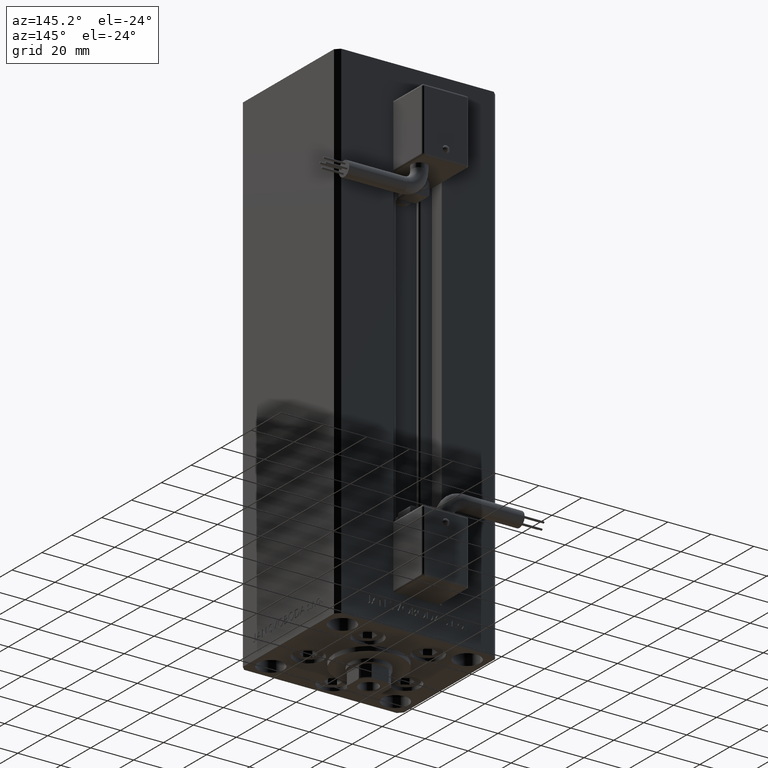
[diagram: clean part render]
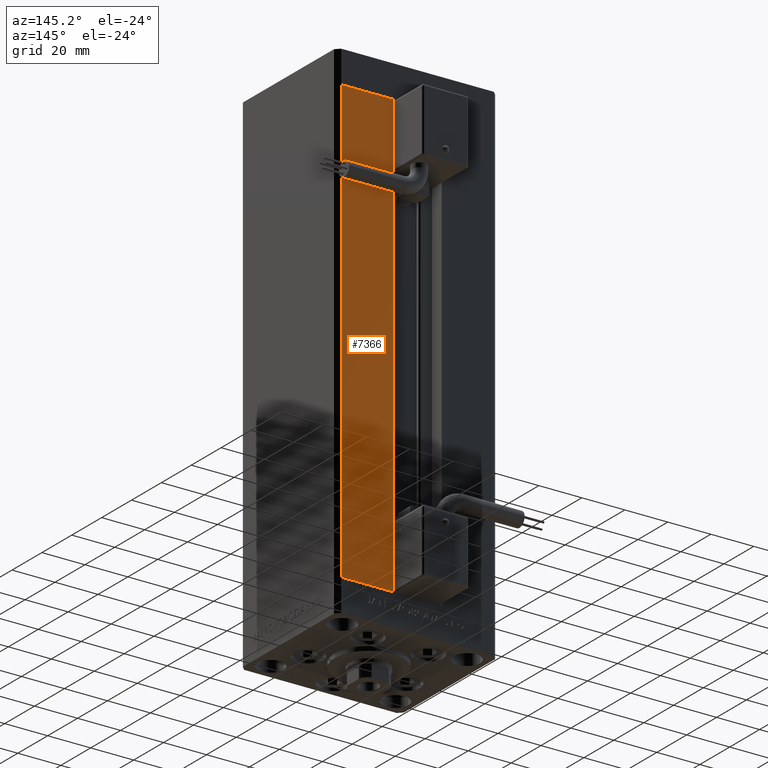
[diagram: same view with one face highlighted and labeled with its STEP entity id]
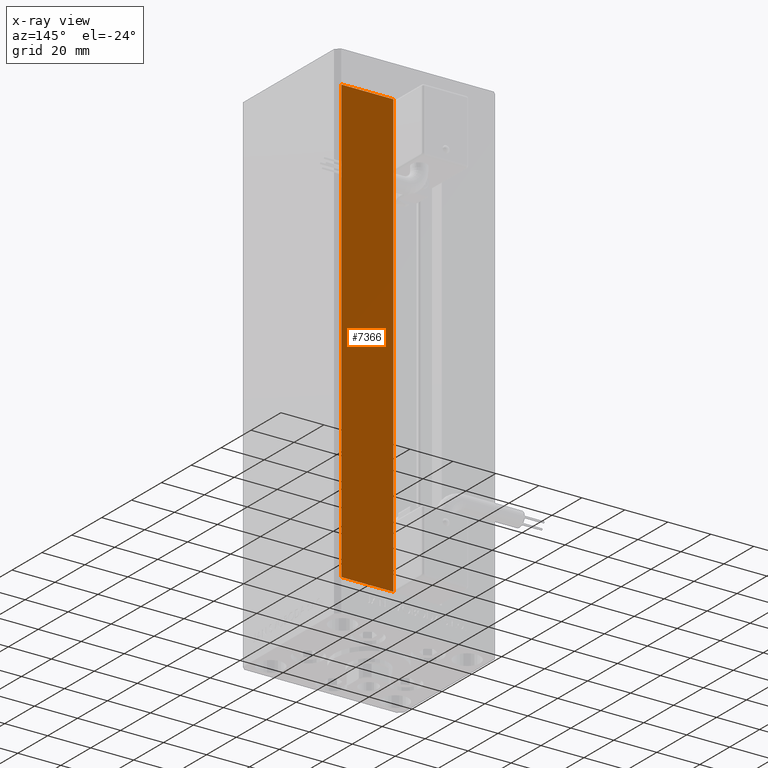
[diagram: x-ray of the same camera — body ghosted, the highlighted face saturated]
A machine part, auxiliary view. The second image highlights one B-rep face of the part: STEP entity #7366.
The next image is the same camera in x-ray: the body ghosted, the highlighted face saturated — about 0% of this face is hidden behind the body in this view.
In plain terms, the highlighted planar face has unit normal (0, -1, 0).
Its self-contained STEP definition (entity closure, byte-faithful):
#1966 = EDGE_CURVE ( 'NONE', #27776, #15350, #6024, .T. ) ;
#2025 = CARTESIAN_POINT ( 'NONE',  ( -11.25000000000000178, 32.49999999999999289, 206.0000000000000000 ) ) ;
#2149 = CARTESIAN_POINT ( 'NONE',  ( -11.25000000000000178, 32.49999999999999289, 0.000000000000000000 ) ) ;
#4015 = VECTOR ( 'NONE', #13900, 1000.000000000000000 ) ;
#5793 = VECTOR ( 'NONE', #38582, 1000.000000000000000 ) ;
#6024 = LINE ( 'NONE', #2025, #29880 ) ;
#7198 = CARTESIAN_POINT ( 'NONE',  ( 11.25000000000000178, 32.49999999999999289, 0.000000000000000000 ) ) ;
#7366 = ADVANCED_FACE ( 'NONE', ( #18417 ), #50927, .F. ) ;
#7435 = ORIENTED_EDGE ( 'NONE', *, *, #26811, .T. ) ;
#10367 = VECTOR ( 'NONE', #17628, 1000.000000000000000 ) ;
#11088 = CARTESIAN_POINT ( 'NONE',  ( 35.50000000000000000, 32.49999999999999289, 0.000000000000000000 ) ) ;
#11335 = AXIS2_PLACEMENT_3D ( 'NONE', #14413, #30685, #13349 ) ;
#13204 = CARTESIAN_POINT ( 'NONE',  ( 11.24999999999999467, 32.49999999999999289, 206.0000000000000000 ) ) ;
#13349 = DIRECTION ( 'NONE',  ( 0.000000000000000000, -0.000000000000000000, -1.000000000000000000 ) ) ;
#13900 = DIRECTION ( 'NONE',  ( -0.000000000000000000, -0.000000000000000000, 1.000000000000000000 ) ) ;
#14413 = CARTESIAN_POINT ( 'NONE',  ( -11.25000000000000178, 32.49999999999999289, 206.0000000000000000 ) ) ;
#14684 = LINE ( 'NONE', #2149, #10367 ) ;
#15350 = VERTEX_POINT ( 'NONE', #40024 ) ;
#17628 = DIRECTION ( 'NONE',  ( -1.000000000000000000, 0.000000000000000000, 0.000000000000000000 ) ) ;
#18417 = FACE_OUTER_BOUND ( 'NONE', #20704, .T. ) ;
#20704 = EDGE_LOOP ( 'NONE', ( #30002, #48287, #37252, #7435 ) ) ;
#23266 = EDGE_CURVE ( 'NONE', #45273, #27776, #50941, .T. ) ;
#26811 = EDGE_CURVE ( 'NONE', #15350, #43774, #47610, .T. ) ;
#27776 = VERTEX_POINT ( 'NONE', #13204 ) ;
#29880 = VECTOR ( 'NONE', #49760, 1000.000000000000000 ) ;
#30002 = ORIENTED_EDGE ( 'NONE', *, *, #51532, .T. ) ;
#30685 = DIRECTION ( 'NONE',  ( 0.000000000000000000, -1.000000000000000000, 0.000000000000000000 ) ) ;
#30697 = CARTESIAN_POINT ( 'NONE',  ( 11.25000000000000178, 32.49999999999999289, 0.000000000000000000 ) ) ;
#37252 = ORIENTED_EDGE ( 'NONE', *, *, #1966, .T. ) ;
#38582 = DIRECTION ( 'NONE',  ( -0.000000000000000000, -0.000000000000000000, -1.000000000000000000 ) ) ;
#40024 = CARTESIAN_POINT ( 'NONE',  ( 35.50000000000000000, 32.49999999999999289, 206.0000000000000000 ) ) ;
#43774 = VERTEX_POINT ( 'NONE', #11088 ) ;
#45273 = VERTEX_POINT ( 'NONE', #7198 ) ;
#46818 = CARTESIAN_POINT ( 'NONE',  ( 35.50000000000000000, 32.49999999999999289, 206.0000000000000000 ) ) ;
#47610 = LINE ( 'NONE', #46818, #5793 ) ;
#48287 = ORIENTED_EDGE ( 'NONE', *, *, #23266, .T. ) ;
#49760 = DIRECTION ( 'NONE',  ( 1.000000000000000000, 0.000000000000000000, 0.000000000000000000 ) ) ;
#50927 = PLANE ( 'NONE',  #11335 ) ;
#50941 = LINE ( 'NONE', #30697, #4015 ) ;
#51532 = EDGE_CURVE ( 'NONE', #43774, #45273, #14684, .T. ) ;